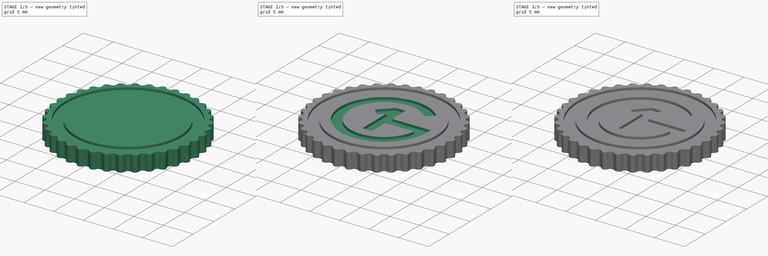
[diagram: build sequence overview — one tinted view per stage of 3, left to right]
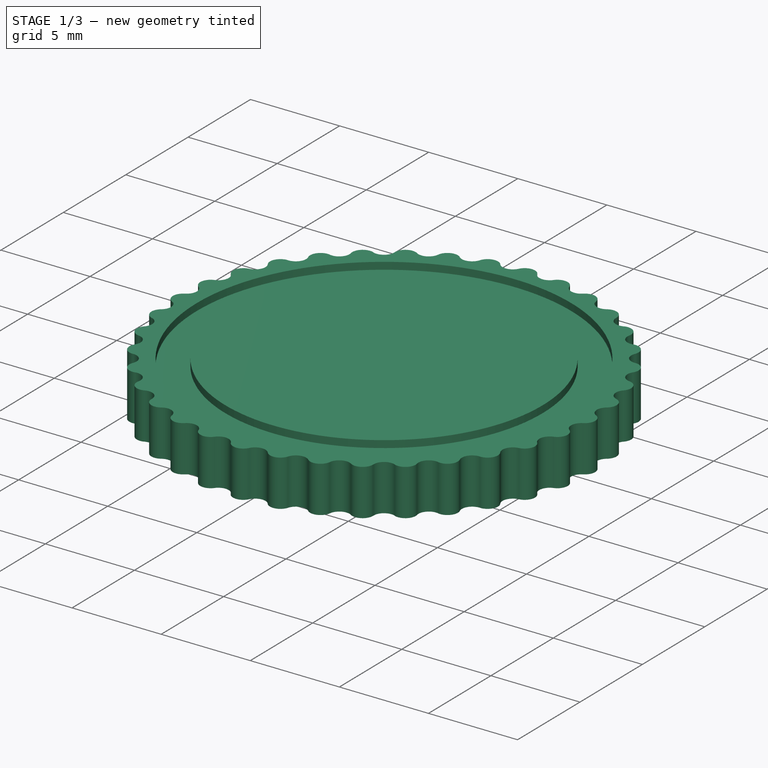
[diagram: stage 1 of 3 — iso view after this stage's code; geometry added in this stage tinted green]
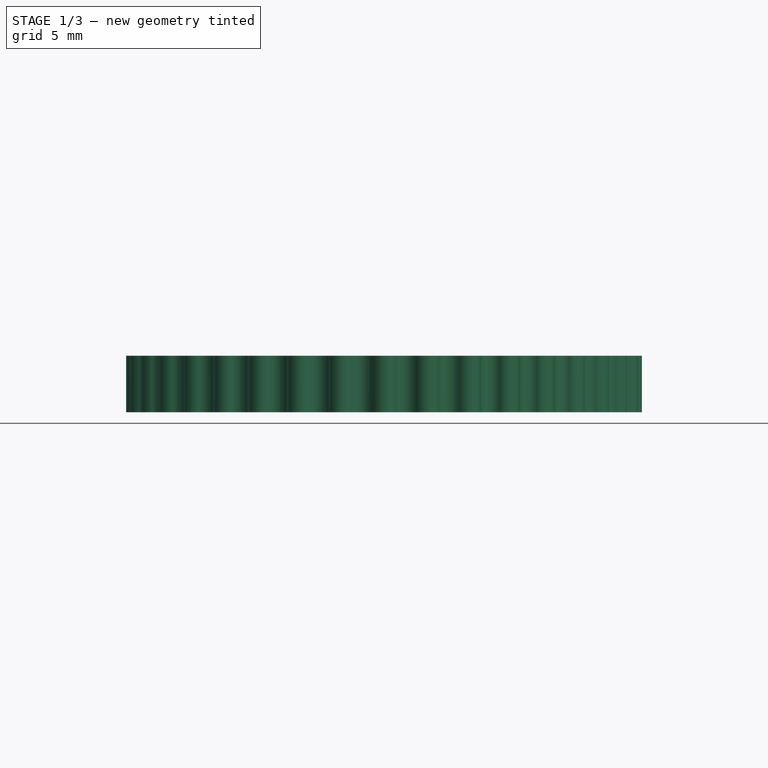
[diagram: stage 1 of 3 — front view after this stage's code; geometry added in this stage tinted green]
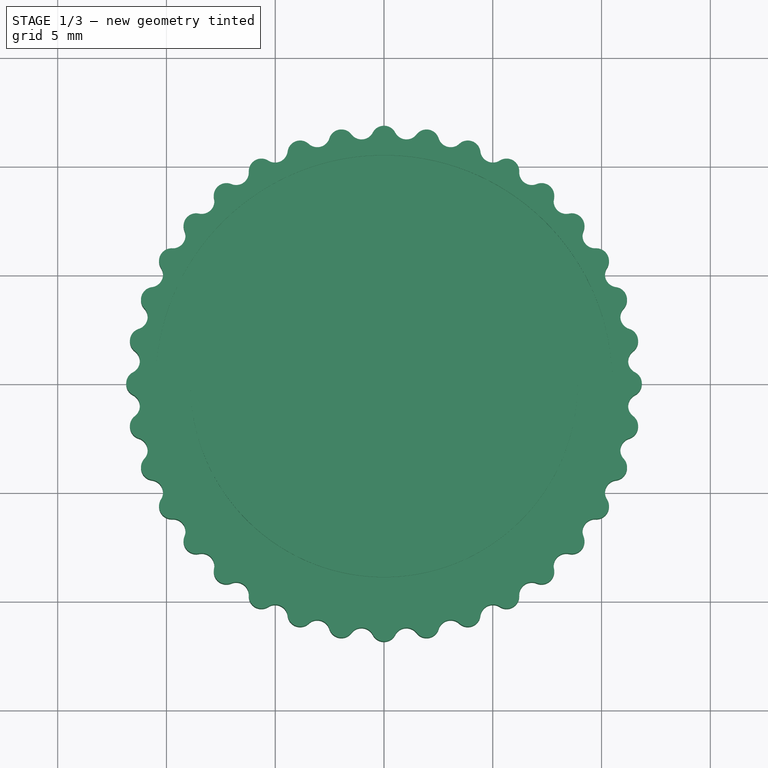
[diagram: stage 1 of 3 — top view after this stage's code; geometry added in this stage tinted green]
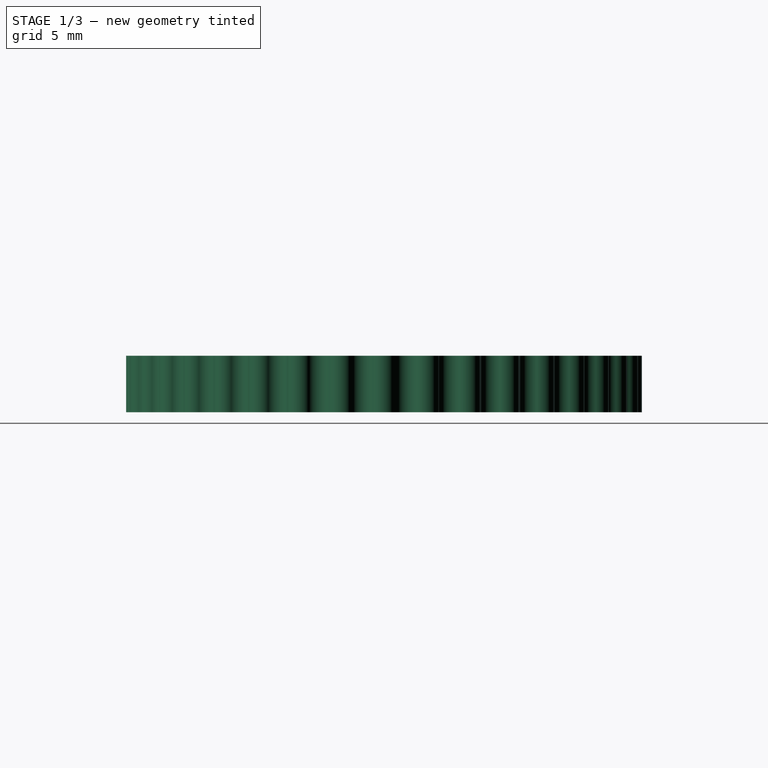
[diagram: stage 1 of 3 — right view after this stage's code; geometry added in this stage tinted green]
FCSTD DOCUMENT  (FreeCAD 0.18.1R)
Label: coinv2
License: All rights reserved
LicenseURL: http://en.wikipedia.org/wiki/All_rights_reserved
objects: Sketcher::SketchObject×5, PartDesign::Pocket×4, PartDesign::Pad×1, PartDesign::Body×1, App::Part×1
note: 16 computed .brp shape members not serialized (recipe doc carries the construction recipe); baked Part::Feature solids carry a one-line shape summary decoded from their .brp

FEATURE [Sketcher::SketchObject] Sketch
  MapMode = 5
  Support = -> [XY_Plane001]
  sketch-geometry (74):
    g0: Circle [constr] CenterX=0 CenterY=0 CenterZ=0 NormalX=0 NormalY=0 NormalZ=1 AngleXU=0 Radius=11.85
    g1: ArcOfCircle CenterX=0 CenterY=11.27 CenterZ=0 NormalX=0 NormalY=0 NormalZ=1 AngleXU=0 Radius=0.581548 StartAngle=0.477882 EndAngle=2.66371
    g2: Circle [constr] CenterX=0 CenterY=0 CenterZ=0 NormalX=0 NormalY=0 NormalZ=1 AngleXU=0 Radius=11.27
    g3: ArcOfCircle CenterX=1.0328 CenterY=11.8049 CenterZ=0 NormalX=0 NormalY=0 NormalZ=1 AngleXU=0 Radius=0.581548 StartAngle=3.61947 EndAngle=5.63077
    g4: ArcOfCircle CenterX=1.95701 CenterY=11.0988 CenterZ=0 NormalX=0 NormalY=0 NormalZ=1 AngleXU=0 Radius=0.581548 StartAngle=0.303349 EndAngle=2.48918
    g5: ArcOfCircle CenterX=3.06701 CenterY=11.4462 CenterZ=0 NormalX=0 NormalY=0 NormalZ=1 AngleXU=0 Radius=0.581548 StartAngle=3.44494 EndAngle=5.45624
    g6: ArcOfCircle CenterX=3.85457 CenterY=10.5903 CenterZ=0 NormalX=0 NormalY=0 NormalZ=1 AngleXU=0 Radius=0.581548 StartAngle=0.128816 EndAngle=2.31464
    g7: ArcOfCircle CenterX=5.00803 CenterY=10.7397 CenterZ=0 NormalX=0 NormalY=0 NormalZ=1 AngleXU=0 Radius=0.581548 StartAngle=3.27041 EndAngle=5.2817
    g8: ArcOfCircle CenterX=5.635 CenterY=9.76011 CenterZ=0 NormalX=0 NormalY=0 NormalZ=1 AngleXU=0 Radius=0.581548 StartAngle=6.23747 EndAngle=8.4233
    g9: ArcOfCircle CenterX=6.79688 CenterY=9.70695 CenterZ=0 NormalX=0 NormalY=0 NormalZ=1 AngleXU=0 Radius=0.581548 StartAngle=3.09588 EndAngle=5.10717
    g10: ArcOfCircle CenterX=7.24422 CenterY=8.63332 CenterZ=0 NormalX=0 NormalY=0 NormalZ=1 AngleXU=0 Radius=0.581548 StartAngle=6.06294 EndAngle=8.24876
    g11: ArcOfCircle CenterX=8.37922 CenterY=8.37922 CenterZ=0 NormalX=0 NormalY=0 NormalZ=1 AngleXU=0 Radius=0.581548 StartAngle=2.92134 EndAngle=4.93264
    g12: ArcOfCircle CenterX=8.63332 CenterY=7.24422 CenterZ=0 NormalX=0 NormalY=0 NormalZ=1 AngleXU=0 Radius=0.581548 StartAngle=5.8884 EndAngle=8.07423
    g13: ArcOfCircle CenterX=9.70695 CenterY=6.79688 CenterZ=0 NormalX=0 NormalY=0 NormalZ=1 AngleXU=0 Radius=0.581548 StartAngle=2.74681 EndAngle=4.75811
    g14: ArcOfCircle CenterX=9.76011 CenterY=5.635 CenterZ=0 NormalX=0 NormalY=0 NormalZ=1 AngleXU=0 Radius=0.581548 StartAngle=5.71387 EndAngle=7.8997
    g15: ArcOfCircle CenterX=10.7397 CenterY=5.00803 CenterZ=0 NormalX=0 NormalY=0 NormalZ=1 AngleXU=0 Radius=0.581548 StartAngle=2.57228 EndAngle=4.58357
    g16: ArcOfCircle CenterX=10.5903 CenterY=3.85457 CenterZ=0 NormalX=0 NormalY=0 NormalZ=1 AngleXU=0 Radius=0.581548 StartAngle=5.53934 EndAngle=7.72517
    g17: ArcOfCircle CenterX=11.4462 CenterY=3.06701 CenterZ=0 NormalX=0 NormalY=0 NormalZ=1 AngleXU=0 Radius=0.581548 StartAngle=2.39774 EndAngle=4.40904
    g18: ArcOfCircle CenterX=11.0988 CenterY=1.95701 CenterZ=0 NormalX=0 NormalY=0 NormalZ=1 AngleXU=0 Radius=0.581548 StartAngle=5.3648 EndAngle=7.55063
    g19: ArcOfCircle CenterX=11.8049 CenterY=1.0328 CenterZ=0 NormalX=0 NormalY=0 NormalZ=1 AngleXU=0 Radius=0.581548 StartAngle=2.22321 EndAngle=4.23451
    g20: ArcOfCircle CenterX=11.27 CenterY=-4.7e-15 CenterZ=0 NormalX=0 NormalY=0 NormalZ=1 AngleXU=0 Radius=0.581548 StartAngle=5.19027 EndAngle=7.3761
    g21: ArcOfCircle CenterX=11.8049 CenterY=-1.0328 CenterZ=0 NormalX=0 NormalY=0 NormalZ=1 AngleXU=0 Radius=0.581548 StartAngle=2.04868 EndAngle=4.05997
    g22: ArcOfCircle CenterX=11.0988 CenterY=-1.95701 CenterZ=0 NormalX=0 NormalY=0 NormalZ=1 AngleXU=0 Radius=0.581548 StartAngle=5.01574 EndAngle=7.20157
    g23: ArcOfCircle CenterX=11.4462 CenterY=-3.06701 CenterZ=0 NormalX=0 NormalY=0 NormalZ=1 AngleXU=0 Radius=0.581548 StartAngle=1.87415 EndAngle=3.88544
    g24: ArcOfCircle CenterX=10.5903 CenterY=-3.85457 CenterZ=0 NormalX=0 NormalY=0 NormalZ=1 AngleXU=0 Radius=0.581548 StartAngle=4.84121 EndAngle=7.02703
    g25: ArcOfCircle CenterX=10.7397 CenterY=-5.00803 CenterZ=0 NormalX=0 NormalY=0 NormalZ=1 AngleXU=0 Radius=0.581548 StartAngle=1.69961 EndAngle=3.71091
    g26: ArcOfCircle CenterX=9.76011 CenterY=-5.635 CenterZ=0 NormalX=0 NormalY=0 NormalZ=1 AngleXU=0 Radius=0.581548 StartAngle=4.66667 EndAngle=6.8525
    g27: ArcOfCircle CenterX=9.70695 CenterY=-6.79688 CenterZ=0 NormalX=0 NormalY=0 NormalZ=1 AngleXU=0 Radius=0.581548 StartAngle=1.52508 EndAngle=3.53638
    g28: ArcOfCircle CenterX=8.63332 CenterY=-7.24422 CenterZ=0 NormalX=0 NormalY=0 NormalZ=1 AngleXU=0 Radius=0.581548 StartAngle=4.49214 EndAngle=6.67797
    g29: ArcOfCircle CenterX=8.37922 CenterY=-8.37922 CenterZ=0 NormalX=0 NormalY=0 NormalZ=1 AngleXU=0 Radius=0.581548 StartAngle=1.35055 EndAngle=3.36184
    g30: ArcOfCircle CenterX=7.24422 CenterY=-8.63332 CenterZ=0 NormalX=0 NormalY=0 NormalZ=1 AngleXU=0 Radius=0.581548 StartAngle=4.31761 EndAngle=6.50344
    g31: ArcOfCircle CenterX=5.00803 CenterY=-10.7397 CenterZ=0 NormalX=0 NormalY=0 NormalZ=1 AngleXU=0 Radius=0.581548 StartAngle=1.00148 EndAngle=3.01278
    g32: ArcOfCircle CenterX=3.85457 CenterY=-10.5903 CenterZ=0 NormalX=0 NormalY=0 NormalZ=1 AngleXU=0 Radius=0.581548 StartAngle=3.96854 EndAngle=6.15437
    g33: ArcOfCircle CenterX=3.06701 CenterY=-11.4462 CenterZ=0 NormalX=0 NormalY=0 NormalZ=1 AngleXU=0 Radius=0.581548 StartAngle=0.826948 EndAngle=2.83824
    g34: ArcOfCircle CenterX=1.95701 CenterY=-11.0988 CenterZ=0 NormalX=0 NormalY=0 NormalZ=1 AngleXU=0 Radius=0.581548 StartAngle=3.79401 EndAngle=5.97984
    g35: ArcOfCircle CenterX=1.0328 CenterY=-11.8049 CenterZ=0 NormalX=0 NormalY=0 NormalZ=1 AngleXU=0 Radius=0.581548 StartAngle=0.652415 EndAngle=2.66371
    g36: ArcOfCircle CenterX=6.79688 CenterY=-9.70695 CenterZ=0 NormalX=0 NormalY=0 NormalZ=1 AngleXU=0 Radius=0.581548 StartAngle=1.17601 EndAngle=3.18731
    g37: ArcOfCircle CenterX=5.635 CenterY=-9.76011 CenterZ=0 NormalX=0 NormalY=0 NormalZ=1 AngleXU=0 Radius=0.581548 StartAngle=4.14307 EndAngle=6.3289
    g38: ArcOfCircle CenterX=0 CenterY=-11.27 CenterZ=0 NormalX=0 NormalY=0 NormalZ=1 AngleXU=0 Radius=0.581548 StartAngle=3.61947 EndAngle=5.8053
    g39: ArcOfCircle CenterX=-1.0328 CenterY=-11.8049 CenterZ=0 NormalX=0 NormalY=0 NormalZ=1 AngleXU=0 Radius=0.581548 StartAngle=0.477882 EndAngle=2.48918
    g40: ArcOfCircle CenterX=-1.95701 CenterY=-11.0988 CenterZ=0 NormalX=0 NormalY=0 NormalZ=1 AngleXU=0 Radius=0.581548 StartAngle=3.44494 EndAngle=5.63077
    g41: ArcOfCircle CenterX=-3.06701 CenterY=-11.4462 CenterZ=0 NormalX=0 NormalY=0 NormalZ=1 AngleXU=0 Radius=0.581548 StartAngle=0.303349 EndAngle=2.31464
    g42: ArcOfCircle CenterX=-3.85457 CenterY=-10.5903 CenterZ=0 NormalX=0 NormalY=0 NormalZ=1 AngleXU=0 Radius=0.581548 StartAngle=3.27041 EndAngle=5.45624
    g43: ArcOfCircle CenterX=-5.00803 CenterY=-10.7397 CenterZ=0 NormalX=0 NormalY=0 NormalZ=1 AngleXU=0 Radius=0.581548 StartAngle=0.128816 EndAngle=2.14011
    g44: ArcOfCircle CenterX=-5.635 CenterY=-9.76011 CenterZ=0 NormalX=0 NormalY=0 NormalZ=1 AngleXU=0 Radius=0.581548 StartAngle=3.09588 EndAngle=5.2817
    g45: ArcOfCircle CenterX=-6.79688 CenterY=-9.70695 CenterZ=0 NormalX=0 NormalY=0 NormalZ=1 AngleXU=0 Radius=0.581548 StartAngle=6.23747 EndAngle=8.24876
    g46: ArcOfCircle CenterX=-7.24422 CenterY=-8.63332 CenterZ=0 NormalX=0 NormalY=0 NormalZ=1 AngleXU=0 Radius=0.581548 StartAngle=2.92134 EndAngle=5.10717
    g47: ArcOfCircle CenterX=-8.37922 CenterY=-8.37922 CenterZ=0 NormalX=0 NormalY=0 NormalZ=1 AngleXU=0 Radius=0.581548 StartAngle=6.06294 EndAngle=8.07423
    g48: ArcOfCircle CenterX=-8.63332 CenterY=-7.24422 CenterZ=0 NormalX=0 NormalY=0 NormalZ=1 AngleXU=0 Radius=0.581548 StartAngle=2.74681 EndAngle=4.93264
    g49: ArcOfCircle CenterX=-9.70695 CenterY=-6.79688 CenterZ=0 NormalX=0 NormalY=0 NormalZ=1 AngleXU=0 Radius=0.581548 StartAngle=5.8884 EndAngle=7.8997
    g50: ArcOfCircle CenterX=-9.76011 CenterY=-5.635 CenterZ=0 NormalX=0 NormalY=0 NormalZ=1 AngleXU=0 Radius=0.581548 StartAngle=2.57228 EndAngle=4.75811
    g51: ArcOfCircle CenterX=-10.7397 CenterY=-5.00803 CenterZ=0 NormalX=0 NormalY=0 NormalZ=1 AngleXU=0 Radius=0.581548 StartAngle=5.71387 EndAngle=7.72517
    g52: ArcOfCircle CenterX=-10.5903 CenterY=-3.85457 CenterZ=0 NormalX=0 NormalY=0 NormalZ=1 AngleXU=0 Radius=0.581548 StartAngle=2.39774 EndAngle=4.58357
    g53: ArcOfCircle CenterX=-11.4462 CenterY=-3.06701 CenterZ=0 NormalX=0 NormalY=0 NormalZ=1 AngleXU=0 Radius=0.581548 StartAngle=5.53934 EndAngle=7.55063
    g54: ArcOfCircle CenterX=-11.0988 CenterY=-1.95701 CenterZ=0 NormalX=0 NormalY=0 NormalZ=1 AngleXU=0 Radius=0.581548 StartAngle=2.22321 EndAngle=4.40904
    g55: ArcOfCircle CenterX=-11.8049 CenterY=-1.0328 CenterZ=0 NormalX=0 NormalY=0 NormalZ=1 AngleXU=0 Radius=0.581548 StartAngle=5.3648 EndAngle=7.3761
    g56: ArcOfCircle CenterX=-11.27 CenterY=-2.8e-15 CenterZ=0 NormalX=0 NormalY=0 NormalZ=1 AngleXU=0 Radius=0.581548 StartAngle=2.04868 EndAngle=4.23451
    g57: ArcOfCircle CenterX=-11.8049 CenterY=1.0328 CenterZ=0 NormalX=0 NormalY=0 NormalZ=1 AngleXU=0 Radius=0.581548 StartAngle=5.19027 EndAngle=7.20157
    g58: ArcOfCircle CenterX=-11.0988 CenterY=1.95701 CenterZ=0 NormalX=0 NormalY=0 NormalZ=1 AngleXU=0 Radius=0.581548 StartAngle=1.87415 EndAngle=4.05997
    g59: ArcOfCircle CenterX=-11.4462 CenterY=3.06701 CenterZ=0 NormalX=0 NormalY=0 NormalZ=1 AngleXU=0 Radius=0.581548 StartAngle=5.01574 EndAngle=7.02703
    g60: ArcOfCircle CenterX=-10.5903 CenterY=3.85457 CenterZ=0 NormalX=0 NormalY=0 NormalZ=1 AngleXU=0 Radius=0.581548 StartAngle=1.69961 EndAngle=3.88544
    g61: ArcOfCircle CenterX=-10.7397 CenterY=5.00803 CenterZ=0 NormalX=0 NormalY=0 NormalZ=1 AngleXU=0 Radius=0.581548 StartAngle=4.84121 EndAngle=6.8525
    g62: ArcOfCircle CenterX=-9.76011 CenterY=5.635 CenterZ=0 NormalX=0 NormalY=0 NormalZ=1 AngleXU=0 Radius=0.581548 StartAngle=1.52508 EndAngle=3.71091
    g63: ArcOfCircle CenterX=-9.70695 CenterY=6.79688 CenterZ=0 NormalX=0 NormalY=0 NormalZ=1 AngleXU=0 Radius=0.581548 StartAngle=4.66667 EndAngle=6.67797
    g64: ArcOfCircle CenterX=-8.63332 CenterY=7.24422 CenterZ=0 NormalX=0 NormalY=0 NormalZ=1 AngleXU=0 Radius=0.581548 StartAngle=1.35055 EndAngle=3.53638
    g65: ArcOfCircle CenterX=-8.37922 CenterY=8.37922 CenterZ=0 NormalX=0 NormalY=0 NormalZ=1 AngleXU=0 Radius=0.581548 StartAngle=4.49214 EndAngle=6.50344
    g66: ArcOfCircle CenterX=-7.24422 CenterY=8.63332 CenterZ=0 NormalX=0 NormalY=0 NormalZ=1 AngleXU=0 Radius=0.581548 StartAngle=1.17601 EndAngle=3.36184
    g67: ArcOfCircle CenterX=-6.79688 CenterY=9.70695 CenterZ=0 NormalX=0 NormalY=0 NormalZ=1 AngleXU=0 Radius=0.581548 StartAngle=4.31761 EndAngle=6.3289
    g68: ArcOfCircle CenterX=-5.635 CenterY=9.76011 CenterZ=0 NormalX=0 NormalY=0 NormalZ=1 AngleXU=0 Radius=0.581548 StartAngle=1.00148 EndAngle=3.18731
    g69: ArcOfCircle CenterX=-5.00803 CenterY=10.7397 CenterZ=0 NormalX=0 NormalY=0 NormalZ=1 AngleXU=0 Radius=0.581548 StartAngle=4.14307 EndAngle=6.15437
    g70: ArcOfCircle CenterX=-3.85457 CenterY=10.5903 CenterZ=0 NormalX=0 NormalY=0 NormalZ=1 AngleXU=0 Radius=0.581548 StartAngle=0.826948 EndAngle=3.01278
    g71: ArcOfCircle CenterX=-3.06701 CenterY=11.4462 CenterZ=0 NormalX=0 NormalY=0 NormalZ=1 AngleXU=0 Radius=0.581548 StartAngle=3.96854 EndAngle=5.97984
    g72: ArcOfCircle CenterX=-1.95701 CenterY=11.0988 CenterZ=0 NormalX=0 NormalY=0 NormalZ=1 AngleXU=0 Radius=0.581548 StartAngle=0.652415 EndAngle=2.83824
    g73: ArcOfCircle CenterX=-1.0328 CenterY=11.8049 CenterZ=0 NormalX=0 NormalY=0 NormalZ=1 AngleXU=0 Radius=0.581548 StartAngle=3.79401 EndAngle=5.8053
  constraints (220):
    c: Coincident(g0,g-1)
    c: Radius(g0) = 11.85  'Outer'
    c: PointOnObject(g1,g2)
    c: PointOnObject(g1,g-2)
    c: PointOnObject(g3,g0)
    c: Tangent(g1,g3) = 1.5708
    c: Equal(g1,g3)
    c: PointOnObject(g4,g2)
    c: Equal(g4,g3)
    c: Tangent(g3,g4) = 1.5708
    c: PointOnObject(g5,g0)
    c: PointOnObject(g6,g2)
    c: PointOnObject(g7,g0)
    c: PointOnObject(g8,g2)
    c: Equal(g5,g4)
    c: Equal(g4,g6)
    c: Equal(g6,g7)
    c: Equal(g7,g8)
    c: Tangent(g4,g5) = 1.5708
    c: Tangent(g5,g6) = 1.5708
    c: Tangent(g6,g7) = 1.5708
    c: Tangent(g7,g8) = 1.5708
    c: PointOnObject(g9,g0)
    c: PointOnObject(g10,g2)
    c: PointOnObject(g11,g0)
    c: PointOnObject(g12,g2)
    c: PointOnObject(g13,g0)
    c: PointOnObject(g14,g2)
    c: PointOnObject(g15,g0)
    c: PointOnObject(g16,g2)
    c: PointOnObject(g17,g0)
    c: PointOnObject(g18,g2)
    c: PointOnObject(g19,g0)
    c: Equal(g8,g9)
    c: Equal(g9,g10)
    c: Equal(g10,g11)
    c: Equal(g11,g12)
    c: Equal(g12,g13)
    c: Equal(g13,g14)
    c: Equal(g14,g15)
    c: Equal(g15,g16)
    c: Equal(g16,g17)
    c: Equal(g17,g18)
    c: Equal(g18,g19)
    c: Tangent(g8,g9) = 1.5708
    c: Tangent(g9,g10) = 1.5708
    c: Tangent(g10,g11) = 1.5708
    c: Tangent(g18,g19) = 1.5708
    c: Tangent(g17,g18) = 1.5708
    c: Tangent(g16,g17) = 1.5708
    c: Tangent(g15,g16) = 1.5708
    c: Tangent(g14,g15) = 1.5708
    c: Tangent(g13,g14) = 1.5708
    c: Tangent(g12,g13) = 1.5708
    c: Tangent(g12,g11) = 1.5708
    c: Coincident(g0,g2)
    c: Radius(g2) = 11.27  'Inner'
    c: PointOnObject(g20,g2)
    c: Equal(g19,g20)
    c: Tangent(g19,g20) = 1.5708
    c: PointOnObject(g21,g0)
    c: PointOnObject(g22,g2)
    c: PointOnObject(g23,g0)
    c: PointOnObject(g24,g2)
    c: PointOnObject(g25,g0)
    c: PointOnObject(g26,g2)
    c: PointOnObject(g27,g0)
    c: PointOnObject(g28,g2)
    c: PointOnObject(g29,g0)
    c: PointOnObject(g30,g2)
    c: PointOnObject(g31,g0)
    c: PointOnObject(g32,g2)
    c: PointOnObject(g33,g0)
    c: PointOnObject(g34,g2)
    c: PointOnObject(g35,g0)
    c: Equal(g20,g21)
    c: Equal(g21,g22)
    c: Equal(g22,g23)
    c: Equal(g23,g24)
    c: Equal(g24,g25)
    c: Equal(g25,g26)
    c: Equal(g26,g27)
    c: Equal(g27,g28)
    c: Equal(g28,g29)
    c: Equal(g29,g30)
    c: Equal(g30,g31)
    c: Equal(g31,g32)
    c: Equal(g32,g33)
    c: Equal(g33,g34)
    c: Equal(g34,g35)
    c: Tangent(g20,g21) = 1.5708
    c: Tangent(g21,g22) = 1.5708
    c: Tangent(g22,g23) = 1.5708
    c: Tangent(g23,g24) = 1.5708
    c: Tangent(g24,g25) = 1.5708
    c: Tangent(g25,g26) = 1.5708
    c: Tangent(g26,g27) = 1.5708
    c: Tangent(g27,g28) = 1.5708
    c: Tangent(g28,g29) = 1.5708
    c: Tangent(g29,g30) = 1.5708
    c: PointOnObject(g36,g0)
    c: PointOnObject(g37,g2)
    c: Equal(g30,g36)
    c: Equal(g36,g37)
    c: Tangent(g30,g36) = 1.5708
    c: Tangent(g36,g37) = 1.5708
    c: Tangent(g31,g37) = 1.5708
    c: Tangent(g31,g32) = 1.5708
    c: Tangent(g32,g33) = 1.5708
    c: Tangent(g33,g34) = 1.5708
    c: Tangent(g34,g35) = 1.5708
    c: PointOnObject(g38,g2)
    c: Equal(g35,g38)
    c: PointOnObject(g38,g-2)
    c: PointOnObject(g39,g0)
    c: PointOnObject(g40,g2)
    c: Equal(g38,g39)
    c: Equal(g39,g40)
    c: Tangent(g39,g38) = 1.5708
    c: Tangent(g40,g39) = 1.5708
    c: PointOnObject(g41,g0)
    c: PointOnObject(g42,g2)
    c: PointOnObject(g43,g0)
    c: PointOnObject(g44,g2)
    c: PointOnObject(g45,g0)
    c: Equal(g40,g41)
    c: Equal(g41,g42)
    c: Equal(g42,g43)
    c: Equal(g43,g44)
    c: Equal(g44,g45)
    c: Tangent(g40,g41) = 1.5708
    c: Tangent(g41,g42) = 1.5708
    c: Tangent(g42,g43) = 1.5708
    c: Tangent(g43,g44) = 1.5708
    c: Tangent(g44,g45) = 1.5708
    c: Tangent(g35,g38) = 1.5708
    c: PointOnObject(g46,g2)
    c: PointOnObject(g47,g0)
    c: PointOnObject(g48,g2)
    c: PointOnObject(g49,g0)
    c: PointOnObject(g50,g2)
    c: PointOnObject(g51,g0)
    c: PointOnObject(g52,g2)
    c: Equal(g45,g46)
    c: Equal(g46,g47)
    c: Equal(g47,g48)
    c: Equal(g48,g49)
    c: Equal(g49,g50)
    c: Equal(g50,g51)
    c: Equal(g51,g52)
    c: Tangent(g45,g46) = 1.5708
    c: Tangent(g46,g47) = 1.5708
    c: Tangent(g47,g48) = 1.5708
    c: Tangent(g48,g49) = 1.5708
    c: Tangent(g49,g50) = 1.5708
    c: Tangent(g50,g51) = 1.5708
    c: Tangent(g51,g52) = 1.5708
    c: PointOnObject(g53,g0)
    c: PointOnObject(g54,g2)
    c: PointOnObject(g55,g0)
    c: PointOnObject(g56,g2)
    c: PointOnObject(g57,g0)
    c: PointOnObject(g58,g2)
    c: Equal(g52,g53)
    c: Equal(g53,g54)
    c: Tangent(g52,g53) = 1.5708
    c: Tangent(g53,g54) = 1.5708
    c: Equal(g54,g55)
    c: Equal(g55,g56)
    c: Tangent(g54,g55) = 1.5708
    c: Tangent(g55,g56) = 1.5708
    c: Equal(g56,g57)
    c: Equal(g57,g58)
    c: Tangent(g56,g57) = 1.5708
    c: Tangent(g57,g58) = 1.5708
    c: PointOnObject(g59,g0)
    c: PointOnObject(g60,g2)
    c: PointOnObject(g61,g0)
    c: PointOnObject(g62,g2)
    c: PointOnObject(g63,g0)
    c: PointOnObject(g64,g2)
    c: PointOnObject(g65,g0)
    c: Equal(g58,g59)
    c: Equal(g59,g60)
    c: Equal(g60,g61)
    c: Equal(g61,g62)
    c: Equal(g62,g63)
    c: Equal(g63,g64)
    c: Equal(g64,g65)
    c: Tangent(g58,g59) = 1.5708
    c: Tangent(g59,g60) = 1.5708
    c: Tangent(g60,g61) = 1.5708
    c: Tangent(g61,g62) = 1.5708
    c: Tangent(g62,g63) = 1.5708
    c: Tangent(g63,g64) = 1.5708
    c: Tangent(g64,g65) = 1.5708
    c: PointOnObject(g66,g2)
    c: PointOnObject(g67,g0)
    c: PointOnObject(g68,g2)
    c: PointOnObject(g69,g0)
    c: PointOnObject(g70,g2)
    c: PointOnObject(g71,g0)
    c: Equal(g65,g66)
    c: Equal(g66,g67)
    c: Equal(g67,g68)
    c: Equal(g68,g69)
    c: Equal(g69,g70)
    c: Equal(g70,g71)
    c: Tangent(g65,g66) = 1.5708
    c: Tangent(g66,g67) = 1.5708
    c: Tangent(g67,g68) = 1.5708
    c: Tangent(g68,g69) = 1.5708
    c: Tangent(g69,g70) = 1.5708
    c: Tangent(g70,g71) = 1.5708
    c: PointOnObject(g72,g2)
    c: PointOnObject(g73,g0)
    c: Equal(g71,g72)
    c: Tangent(g71,g72) = 1.5708
    c: Tangent(g72,g73) = 1.5708
    c: Tangent(g1,g73) = 1.5708
FEATURE [PartDesign::Pad] Pad
  Length = 2.6
  Length2 = 100
  Profile = -> Sketch
  Type = 0
FEATURE [Sketcher::SketchObject] Sketch001
  AttachmentOffset = pos=(0,0,2.6) rot=(0,0,1;0rad)
  MapMode = 5
  Placement = pos=(0,0,2.6) rot=(0,0,1;0rad)
  Support = -> [XY_Plane001]
  expr: AttachmentOffset.Base.z = Pad.Length
  sketch-geometry (2):
    g0: Circle CenterX=0 CenterY=0 CenterZ=0 NormalX=0 NormalY=0 NormalZ=1 AngleXU=0 Radius=10.5
    g1: Circle CenterX=0 CenterY=0 CenterZ=0 NormalX=0 NormalY=0 NormalZ=1 AngleXU=0 Radius=8.9
  constraints (4):
    c: Coincident(g1,g0)
    c: Radius(g0) = 10.5
    c: Radius(g1) = 8.9
    c: Coincident(g0,g-1)
FEATURE [Sketcher::SketchObject] Sketch002
  AttachmentOffset = pos=(0,0,2.6) rot=(0,0,1;0rad)
  MapMode = 5
  Placement = pos=(0,0,2.6) rot=(0,0,1;0rad)
  Support = -> [XY_Plane001]
  expr: AttachmentOffset.Base.z = Sketch001.AttachmentOffset.Base.z
  sketch-geometry (17):
    g0: ArcOfCircle CenterX=0 CenterY=0 CenterZ=0 NormalX=0 NormalY=0 NormalZ=1 AngleXU=0 Radius=7.3 StartAngle=0.785398 EndAngle=6.39299
    g1: ArcOfCircle CenterX=0 CenterY=0 CenterZ=0 NormalX=0 NormalY=0 NormalZ=1 AngleXU=0 Radius=5.7 StartAngle=0.785398 EndAngle=6.14237
    g2: LineSegment StartX=4.03051 StartY=4.03051 StartZ=0 EndX=5.16188 EndY=5.16188 EndZ=0
    g3: LineSegment [constr] StartX=0 StartY=0 StartZ=0 EndX=4.03051 EndY=4.03051 EndZ=0
    g4: LineSegment StartX=5.64358 StartY=-0.8 StartZ=0 EndX=0.8 EndY=-0.8 EndZ=0
    g5: LineSegment StartX=7.25603 StartY=0.8 StartZ=0 EndX=0.8 EndY=0.8 EndZ=0
    g6: LineSegment [constr] StartX=0.8 StartY=-0.8 StartZ=0 EndX=0.8 EndY=0.8 EndZ=0
    g7: LineSegment StartX=0.8 StartY=-0.8 StartZ=0 EndX=0.8 EndY=-4.03051 EndZ=0
    g8: LineSegment StartX=0.8 StartY=-4.03051 StartZ=0 EndX=-0.8 EndY=-4.03051 EndZ=0
    g9: LineSegment StartX=-0.8 StartY=-4.03051 StartZ=0 EndX=-0.8 EndY=1.76777 EndZ=0
    g10: LineSegment StartX=-0.8 StartY=1.76777 StartZ=0 EndX=-1.76777 EndY=0.8 EndZ=0
    g11: LineSegment StartX=-1.76777 StartY=0.8 StartZ=0 EndX=-2.89914 EndY=1.93137 EndZ=0
    g12: LineSegment StartX=-2.89914 StartY=1.93137 StartZ=0 EndX=-0.8 EndY=4.03051 EndZ=0
    g13: LineSegment StartX=-0.8 StartY=4.03051 StartZ=0 EndX=0.8 EndY=4.03051 EndZ=0
    g14: LineSegment StartX=0.8 StartY=4.03051 StartZ=0 EndX=0.8 EndY=0.8 EndZ=0
    g15: LineSegment [constr] StartX=0.8 StartY=4.03051 StartZ=0 EndX=4.03051 EndY=4.03051 EndZ=0
    g16: LineSegment [constr] StartX=-1.76777 StartY=0.8 StartZ=0 EndX=0.8 EndY=0.8 EndZ=0
  constraints (45):
    c: Coincident(g2,g1)
    c: Coincident(g2,g0)
    c: Coincident(g3,g1)
    c: Parallel(g3,g2)
    c: Radius(g0) = 7.3
    c: Radius(g1) = 5.7
    c: Coincident(g4,g1)
    c: Horizontal(g4)
    c: Coincident(g5,g0)
    c: Horizontal(g5)
    c: Coincident(g6,g4)
    c: Coincident(g6,g5)
    c: Symmetric(g5,g4,g-1)
    c: Equal(g6,g2)
    c: Coincident(g4,g7)
    c: Vertical(g7)
    c: Coincident(g7,g8)
    c: Coincident(g8,g9)
    c: Vertical(g9)
    c: Coincident(g9,g10)
    c: Coincident(g10,g11)
    c: Coincident(g11,g12)
    c: Coincident(g12,g13)
    c: Horizontal(g13)
    c: Coincident(g13,g14)
    c: Coincident(g14,g5)
    c: Vertical(g14)
    c: Symmetric(g8,g7,g-2)
    c: Equal(g6,g8)
    c: Equal(g8,g11)
    c: Equal(g11,g13)
    c: Angle(g-1,g3) = 0.785398
    c: Parallel(g3,g10)
    c: Parallel(g10,g12)
    c: Perpendicular(g10,g11)
    c: Equal(g7,g14)
    c: Coincident(g15,g13)
    c: Coincident(g15,g1)
    c: Horizontal(g15)
    c: Coincident(g16,g10)
    c: Coincident(g16,g5)
    c: Horizontal(g16)
    c: Coincident(g0,g1)
    c: Coincident(g0,g3)
    c: Coincident(g0,g-1)
FEATURE [PartDesign::Pocket] Pocket
  BaseFeature = -> Pad
  Length = 0.4
  Length2 = 100
  Profile = -> Sketch001
  Type = 0
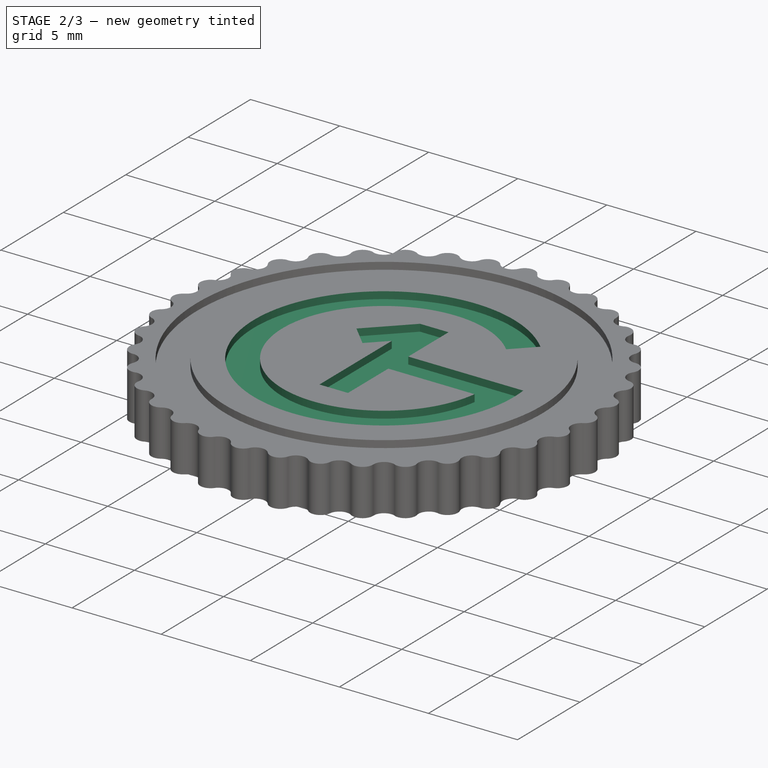
[diagram: stage 2 of 3 — iso view after this stage's code; geometry added in this stage tinted green]
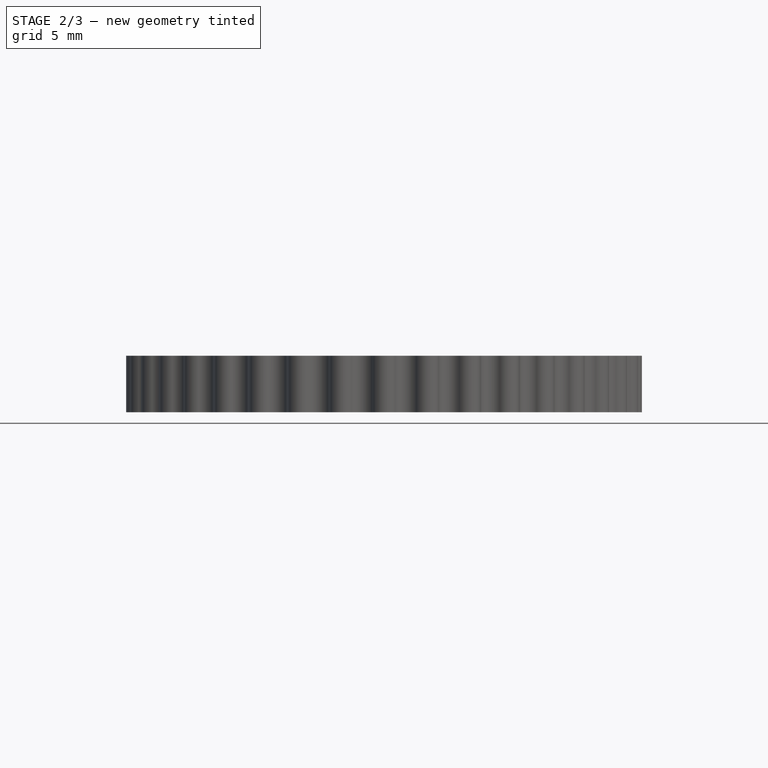
[diagram: stage 2 of 3 — front view after this stage's code; geometry added in this stage tinted green]
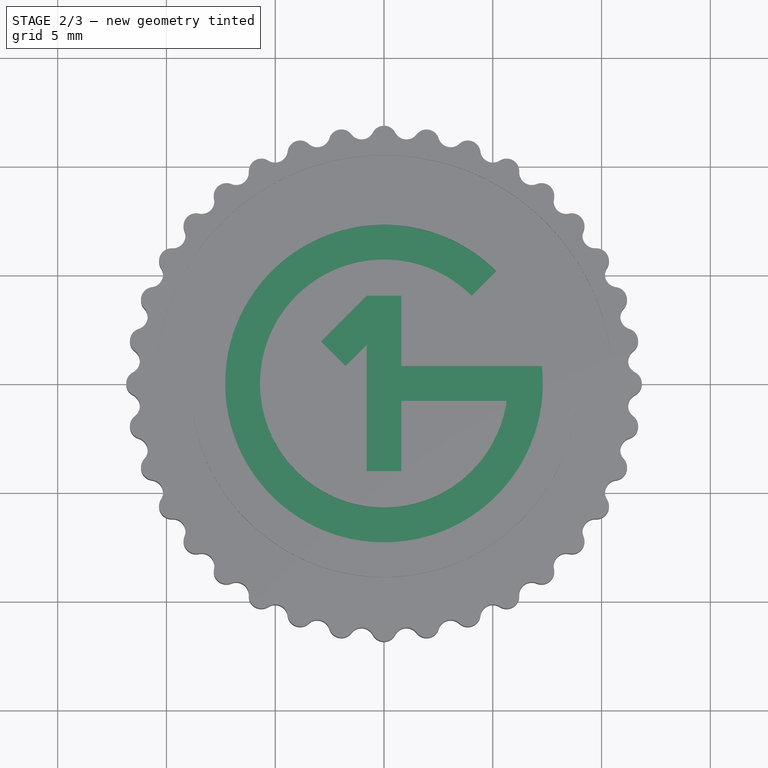
[diagram: stage 2 of 3 — top view after this stage's code; geometry added in this stage tinted green]
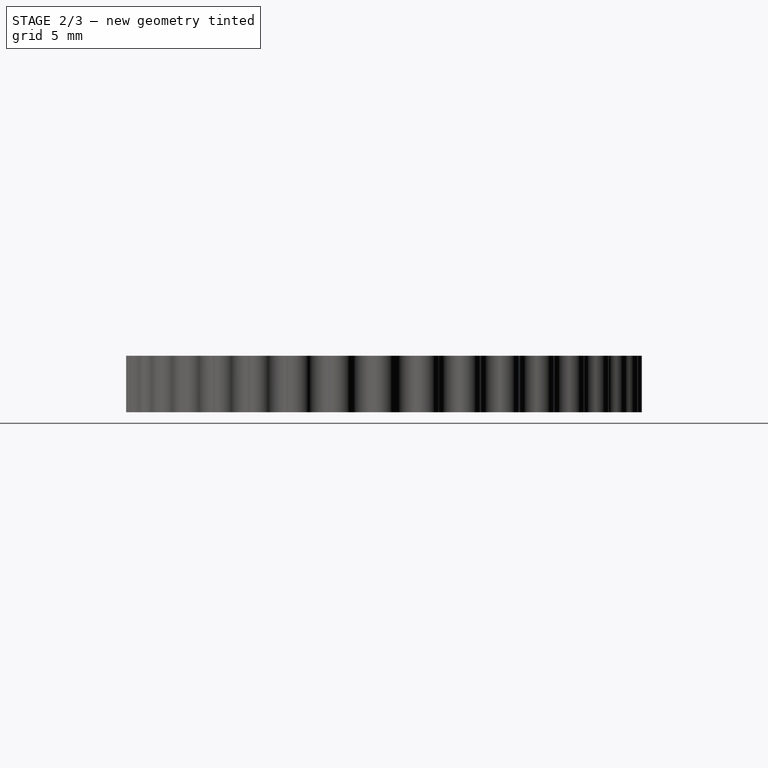
[diagram: stage 2 of 3 — right view after this stage's code; geometry added in this stage tinted green]
FEATURE [PartDesign::Pocket] Pocket001
  BaseFeature = -> Pocket
  Length = 0.4
  Length2 = 100
  Profile = -> Sketch002
  Type = 0
  expr: Length = Pocket.Length
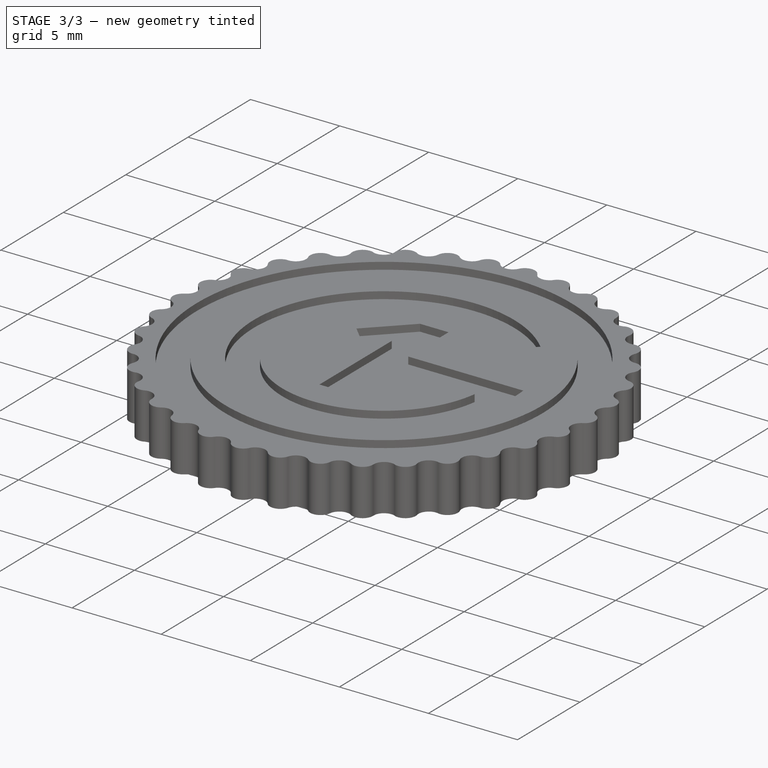
[diagram: stage 3 of 3 — iso view after this stage's code; geometry added in this stage tinted green]
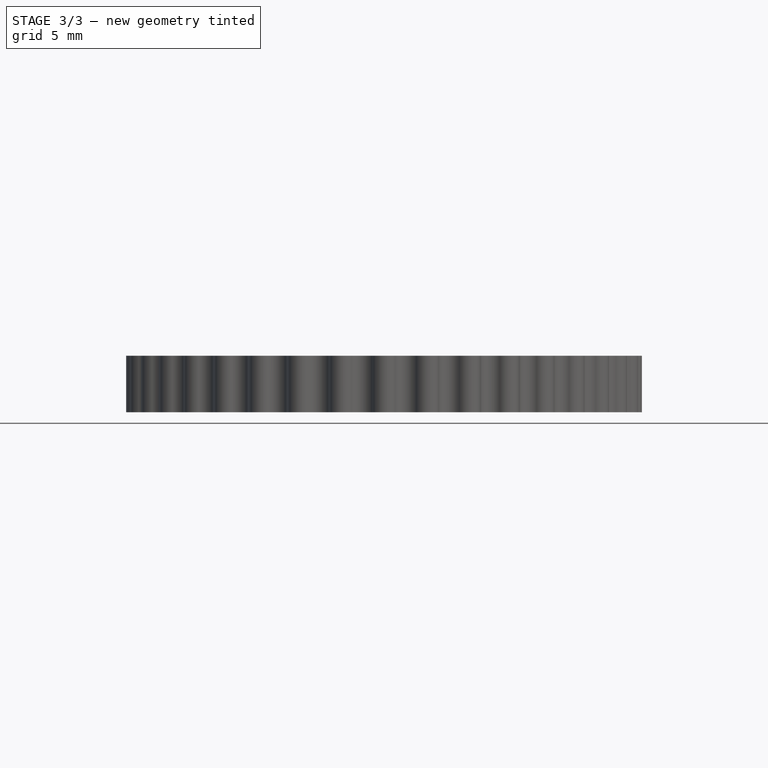
[diagram: stage 3 of 3 — front view after this stage's code; geometry added in this stage tinted green]
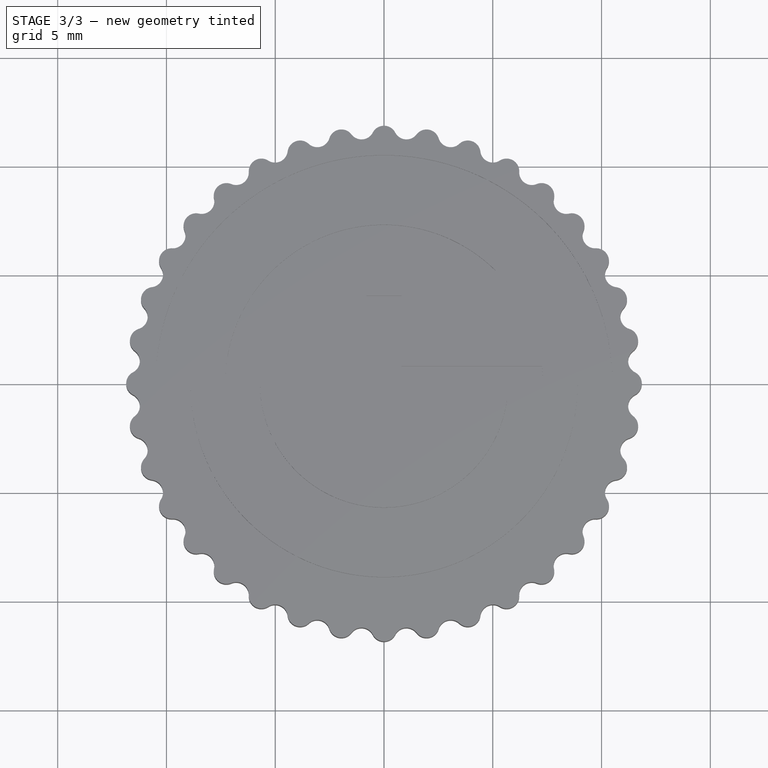
[diagram: stage 3 of 3 — top view after this stage's code; geometry added in this stage tinted green]
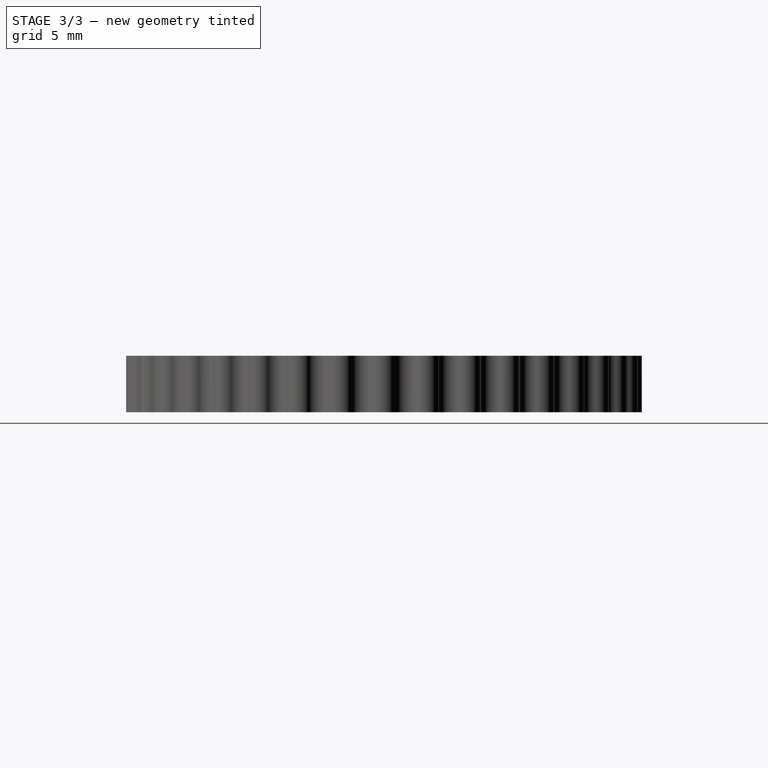
[diagram: stage 3 of 3 — right view after this stage's code; geometry added in this stage tinted green]
FEATURE [Sketcher::SketchObject] Sketch003
  AttachmentOffset = pos=(0,0,0) rot=(0,1,0;3.14159rad)
  MapMode = 5
  Placement = pos=(0,0,0) rot=(0,1,0;3.14159rad)
  Support = -> [XY_Plane001]
  sketch-geometry (2):
    g0: Circle CenterX=0 CenterY=0 CenterZ=0 NormalX=0 NormalY=0 NormalZ=1 AngleXU=0 Radius=10.5
    g1: Circle CenterX=0 CenterY=0 CenterZ=0 NormalX=0 NormalY=0 NormalZ=1 AngleXU=0 Radius=8.9
  constraints (4):
    c: Coincident(g1,g0)
    c: Radius(g0) = 10.5
    c: Radius(g1) = 8.9
    c: Coincident(g0,g-1)
FEATURE [PartDesign::Pocket] Pocket002
  BaseFeature = -> Pocket001
  Length = 0.4
  Length2 = 100
  Profile = -> Sketch003
  Type = 0
  expr: Length = Pocket.Length
FEATURE [Sketcher::SketchObject] Sketch004
  AttachmentOffset = pos=(0,0,0) rot=(0,1,0;3.14159rad)
  MapMode = 5
  Placement = pos=(0,0,0) rot=(0,1,0;3.14159rad)
  Support = -> [XY_Plane001]
  sketch-geometry (17):
    g0: ArcOfCircle CenterX=0 CenterY=0 CenterZ=0 NormalX=0 NormalY=0 NormalZ=1 AngleXU=0 Radius=7.3 StartAngle=0.785398 EndAngle=6.39299
    g1: ArcOfCircle CenterX=0 CenterY=0 CenterZ=0 NormalX=0 NormalY=0 NormalZ=1 AngleXU=0 Radius=5.7 StartAngle=0.785398 EndAngle=6.14237
    g2: LineSegment StartX=4.03051 StartY=4.03051 StartZ=0 EndX=5.16188 EndY=5.16188 EndZ=0
    g3: LineSegment [constr] StartX=0 StartY=0 StartZ=0 EndX=4.03051 EndY=4.03051 EndZ=0
    g4: LineSegment StartX=5.64358 StartY=-0.8 StartZ=0 EndX=0.8 EndY=-0.8 EndZ=0
    g5: LineSegment StartX=7.25603 StartY=0.8 StartZ=0 EndX=0.8 EndY=0.8 EndZ=0
    g6: LineSegment [constr] StartX=0.8 StartY=-0.8 StartZ=0 EndX=0.8 EndY=0.8 EndZ=0
    g7: LineSegment StartX=0.8 StartY=-0.8 StartZ=0 EndX=0.8 EndY=-4.03051 EndZ=0
    g8: LineSegment StartX=0.8 StartY=-4.03051 StartZ=0 EndX=-0.8 EndY=-4.03051 EndZ=0
    g9: LineSegment StartX=-0.8 StartY=-4.03051 StartZ=0 EndX=-0.8 EndY=1.76777 EndZ=0
    g10: LineSegment StartX=-0.8 StartY=1.76777 StartZ=0 EndX=-1.76777 EndY=0.8 EndZ=0
    g11: LineSegment StartX=-1.76777 StartY=0.8 StartZ=0 EndX=-2.89914 EndY=1.93137 EndZ=0
    g12: LineSegment StartX=-2.89914 StartY=1.93137 StartZ=0 EndX=-0.8 EndY=4.03051 EndZ=0
    g13: LineSegment StartX=-0.8 StartY=4.03051 StartZ=0 EndX=0.8 EndY=4.03051 EndZ=0
    g14: LineSegment StartX=0.8 StartY=4.03051 StartZ=0 EndX=0.8 EndY=0.8 EndZ=0
    g15: LineSegment [constr] StartX=0.8 StartY=4.03051 StartZ=0 EndX=4.03051 EndY=4.03051 EndZ=0
    g16: LineSegment [constr] StartX=-1.76777 StartY=0.8 StartZ=0 EndX=0.8 EndY=0.8 EndZ=0
  constraints (45):
    c: Coincident(g2,g1)
    c: Coincident(g2,g0)
    c: Coincident(g3,g1)
    c: Parallel(g3,g2)
    c: Radius(g0) = 7.3
    c: Radius(g1) = 5.7
    c: Coincident(g4,g1)
    c: Horizontal(g4)
    c: Coincident(g5,g0)
    c: Horizontal(g5)
    c: Coincident(g6,g4)
    c: Coincident(g6,g5)
    c: Symmetric(g5,g4,g-1)
    c: Equal(g6,g2)
    c: Coincident(g4,g7)
    c: Vertical(g7)
    c: Coincident(g7,g8)
    c: Coincident(g8,g9)
    c: Vertical(g9)
    c: Coincident(g9,g10)
    c: Coincident(g10,g11)
    c: Coincident(g11,g12)
    c: Coincident(g12,g13)
    c: Horizontal(g13)
    c: Coincident(g13,g14)
    c: Coincident(g14,g5)
    c: Vertical(g14)
    c: Symmetric(g8,g7,g-2)
    c: Equal(g6,g8)
    c: Equal(g8,g11)
    c: Equal(g11,g13)
    c: Angle(g-1,g3) = 0.785398
    c: Parallel(g3,g10)
    c: Parallel(g10,g12)
    c: Perpendicular(g10,g11)
    c: Equal(g7,g14)
    c: Coincident(g15,g13)
    c: Coincident(g15,g1)
    c: Horizontal(g15)
    c: Coincident(g16,g10)
    c: Coincident(g16,g5)
    c: Horizontal(g16)
    c: Coincident(g0,g1)
    c: Coincident(g0,g3)
    c: Coincident(g0,g-1)
FEATURE [PartDesign::Pocket] Pocket003
  BaseFeature = -> Pocket002
  Length = 0.4
  Length2 = 100
  Profile = -> Sketch004
  Type = 0
  expr: Length = Pocket.Length
FEATURE [PartDesign::Body] Body
  Group = -> [Sketch,Pad,Sketch001,Sketch002,Pocket,Pocket001,Sketch003,Pocket002,Sketch004,Pocket003]
  Origin = -> Origin001
  Tip = -> Pocket003
FEATURE [App::Part] Part
  Group = -> [Body]
  Origin = -> Origin
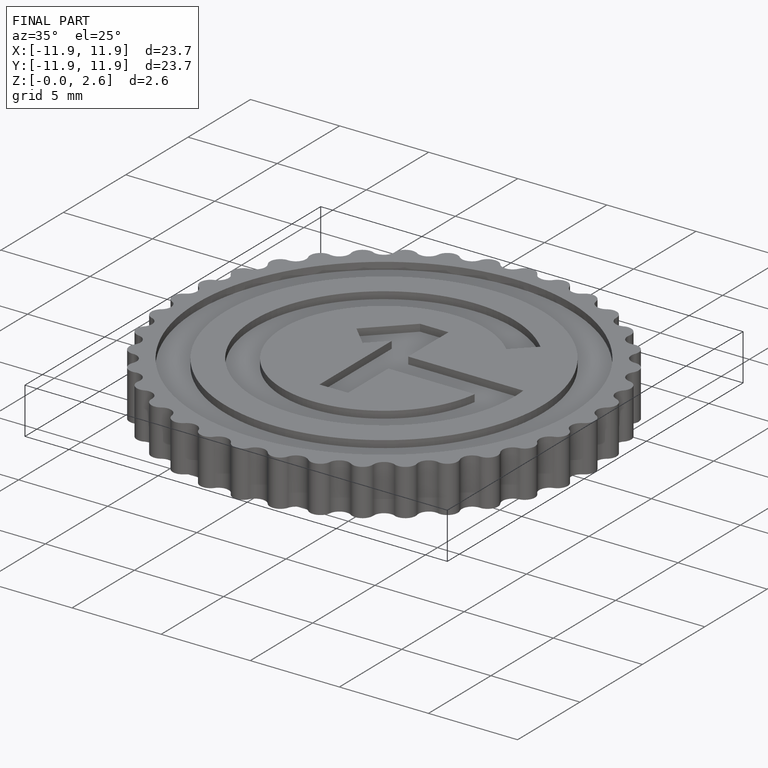
[diagram: finished part — iso view with bounding-box wireframe]
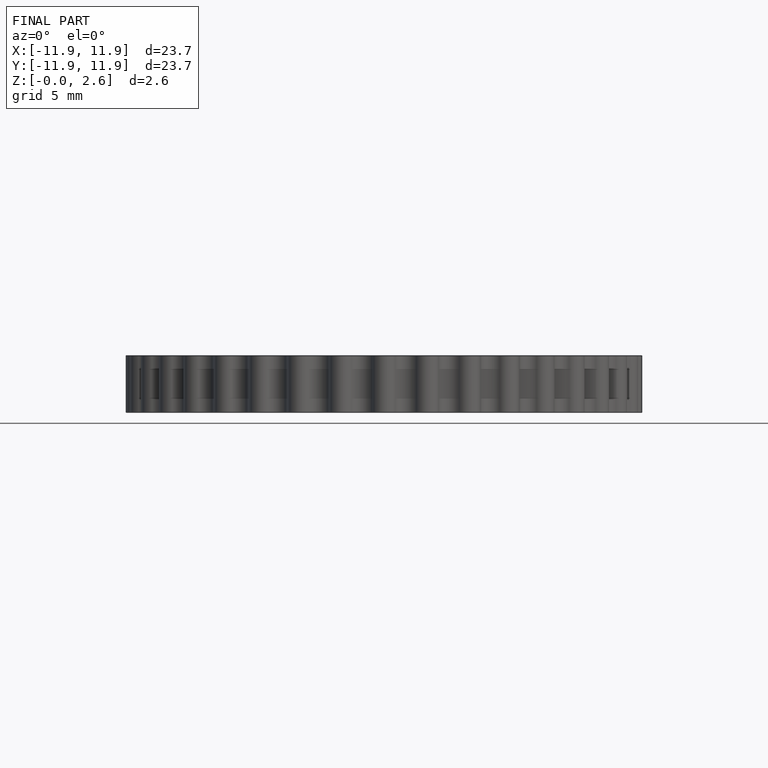
[diagram: finished part — front view with bounding-box wireframe]
